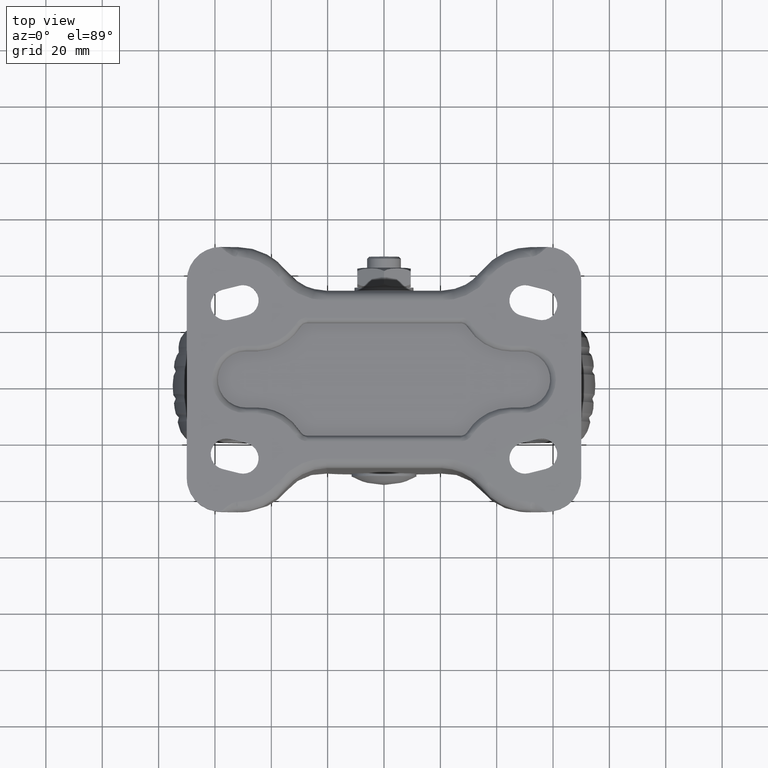
[diagram: clean part render]
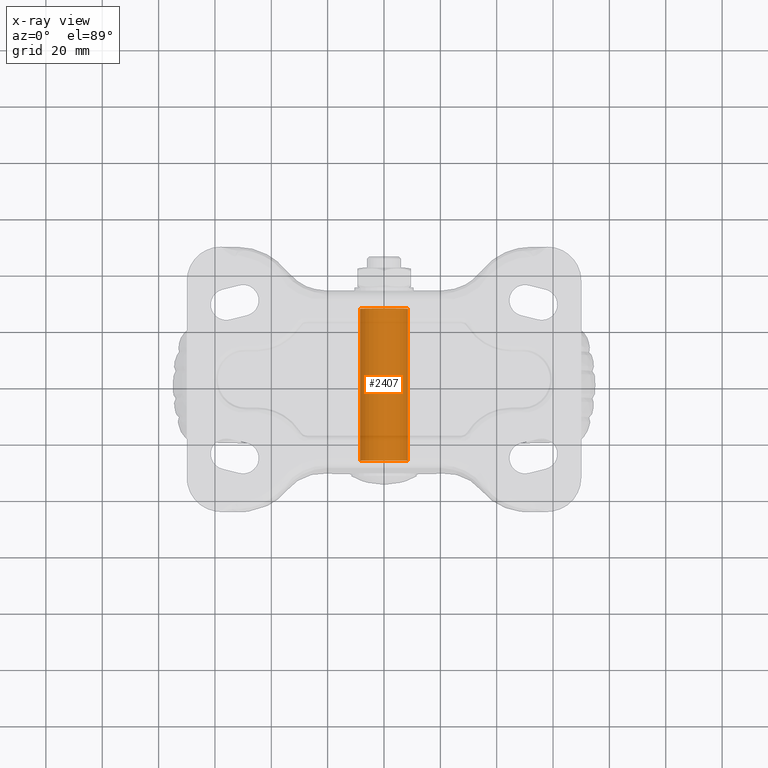
[diagram: x-ray — body ghosted, one internal face saturated and labeled with its STEP entity id]
A machine part, top view, then the same camera in x-ray: the body is ghosted and one INTERNAL B-rep face — a face not visible from any outside direction — is saturated and labeled: STEP entity #2407.
In plain terms, the highlighted face is a freeform B-spline surface patch.
Its self-contained STEP definition (entity closure, byte-faithful):
#2274=CARTESIAN_POINT('',(0.0,-27.0,8.499985000000276));
#2275=VERTEX_POINT('',#2274);
#2276=CARTESIAN_POINT('',(-8.484145786552585,-27.0,0.518897586592595));
#2277=VERTEX_POINT('',#2276);
#2278=CARTESIAN_POINT('',(0.0,-27.0,8.499985000000276));
#2279=CARTESIAN_POINT('',(-7.996001568182833,-27.000000000000004,8.499985000000276));
#2280=CARTESIAN_POINT('',(-8.484145786552588,-27.0,0.518897586592594));
#2288=(BOUNDED_CURVE()B_SPLINE_CURVE(2,(#2278,#2279,#2280),.UNSPECIFIED.,.F.,.U.)B_SPLINE_CURVE_WITH_KNOTS((3,3),(0.500000000000000,0.739332962230861),.UNSPECIFIED.)CURVE()GEOMETRIC_REPRESENTATION_ITEM()RATIONAL_B_SPLINE_CURVE((1.0,0.719603993296179,0.976072041649397))REPRESENTATION_ITEM(''));
#2289=EDGE_CURVE('',#2275,#2277,#2288,.T.);
#2291=CARTESIAN_POINT('',(8.484145786552585,-27.0,-0.518927586592285));
#2292=VERTEX_POINT('',#2291);
#2293=CARTESIAN_POINT('',(8.484145786552585,-27.0,-0.518927586592286));
#2294=CARTESIAN_POINT('',(8.500000000000119,-27.0,-0.259713488311695));
#2295=CARTESIAN_POINT('',(8.500000000000121,-27.0,-0.000014999999845));
#2296=CARTESIAN_POINT('',(8.500000000000121,-27.000000000000011,8.499985000000276));
#2297=CARTESIAN_POINT('',(0.0,-27.0,8.499985000000276));
#2305=(BOUNDED_CURVE()B_SPLINE_CURVE(2,(#2293,#2294,#2295,#2296,#2297),.UNSPECIFIED.,.F.,.U.)B_SPLINE_CURVE_WITH_KNOTS((3,2,3),(0.239332962230861,0.250000000000000,0.500000000000000),.UNSPECIFIED.)CURVE()GEOMETRIC_REPRESENTATION_ITEM()RATIONAL_B_SPLINE_CURVE((0.976072041649397,0.987502787890369,1.0,0.707106781186548,1.0))REPRESENTATION_ITEM(''));
#2306=EDGE_CURVE('',#2292,#2275,#2305,.T.);
#2341=CARTESIAN_POINT('',(8.484145786585987,28.350000000000009,-0.518927586046137));
#2342=CARTESIAN_POINT('',(9.003058372632280,28.350000000000009,7.965218200539851));
#2343=CARTESIAN_POINT('',(0.518912586046292,28.350000000000009,8.484130786586142));
#2344=CARTESIAN_POINT('',(-7.965233200539695,28.350000000000009,9.003043372632433));
#2345=CARTESIAN_POINT('',(-8.484145786585987,28.350000000000009,0.518897586046446));
#2346=CARTESIAN_POINT('',(8.484145786585987,-28.383749999999999,-0.518927586046137));
#2347=CARTESIAN_POINT('',(9.003058372632280,-28.383749999999999,7.965218200539851));
#2348=CARTESIAN_POINT('',(0.518912586046292,-28.383749999999999,8.484130786586142));
#2349=CARTESIAN_POINT('',(-7.965233200539695,-28.383749999999999,9.003043372632433));
#2350=CARTESIAN_POINT('',(-8.484145786585987,-28.383749999999999,0.518897586046446));
#2358=(BOUNDED_SURFACE()B_SPLINE_SURFACE(2,1,((#2341,#2346),(#2342,#2347),(#2343,#2348),(#2344,#2349),(#2345,#2350)),.UNSPECIFIED.,.F.,.F.,.U.)B_SPLINE_SURFACE_WITH_KNOTS((3,2,3),(2,2),(0.0,14.083261120685430,28.166522241370860),(0.0,56.733750000000022),.UNSPECIFIED.)GEOMETRIC_REPRESENTATION_ITEM()RATIONAL_B_SPLINE_SURFACE(((1.0,1.0),(0.707106781186548,0.707106781186548),(1.0,1.0),(0.707106781186548,0.707106781186548),(1.0,1.0)))REPRESENTATION_ITEM('')SURFACE());
#2359=ORIENTED_EDGE('',*,*,#2306,.T.);
#2360=ORIENTED_EDGE('',*,*,#2289,.T.);
#2361=CARTESIAN_POINT('',(-8.484145786552585,27.0,0.518897586592592));
#2362=VERTEX_POINT('',#2361);
#2363=CARTESIAN_POINT('',(-8.484145786552585,27.0,0.518897586592592));
#2364=CARTESIAN_POINT('',(-8.484145786552585,-27.0,0.518897586592595));
#2365=QUASI_UNIFORM_CURVE('',1,(#2363,#2364),.UNSPECIFIED.,.F.,.U.);
#2366=EDGE_CURVE('',#2362,#2277,#2365,.T.);
#2367=ORIENTED_EDGE('',*,*,#2366,.F.);
#2368=CARTESIAN_POINT('',(0.0,27.0,8.499985000000276));
#2369=VERTEX_POINT('',#2368);
#2370=CARTESIAN_POINT('',(0.0,27.0,8.499985000000276));
#2371=CARTESIAN_POINT('',(-7.996001568182833,27.000000000000004,8.499985000000276));
#2372=CARTESIAN_POINT('',(-8.484145786552588,27.0,0.518897586592594));
#2380=(BOUNDED_CURVE()B_SPLINE_CURVE(2,(#2370,#2371,#2372),.UNSPECIFIED.,.F.,.U.)B_SPLINE_CURVE_WITH_KNOTS((3,3),(0.500000000000000,0.739332962230861),.UNSPECIFIED.)CURVE()GEOMETRIC_REPRESENTATION_ITEM()RATIONAL_B_SPLINE_CURVE((1.0,0.719603993296179,0.976072041649397))REPRESENTATION_ITEM(''));
#2381=EDGE_CURVE('',#2369,#2362,#2380,.T.);
#2382=ORIENTED_EDGE('',*,*,#2381,.F.);
#2383=CARTESIAN_POINT('',(8.484145786552585,27.0,-0.518927586592285));
#2384=VERTEX_POINT('',#2383);
#2385=CARTESIAN_POINT('',(8.484145786552585,27.0,-0.518927586592286));
#2386=CARTESIAN_POINT('',(8.500000000000119,27.0,-0.259713488311695));
#2387=CARTESIAN_POINT('',(8.500000000000121,27.0,-0.000014999999845));
#2388=CARTESIAN_POINT('',(8.500000000000121,27.000000000000011,8.499985000000276));
#2389=CARTESIAN_POINT('',(0.0,27.0,8.499985000000276));
#2397=(BOUNDED_CURVE()B_SPLINE_CURVE(2,(#2385,#2386,#2387,#2388,#2389),.UNSPECIFIED.,.F.,.U.)B_SPLINE_CURVE_WITH_KNOTS((3,2,3),(0.239332962230861,0.250000000000000,0.500000000000000),.UNSPECIFIED.)CURVE()GEOMETRIC_REPRESENTATION_ITEM()RATIONAL_B_SPLINE_CURVE((0.976072041649397,0.987502787890369,1.0,0.707106781186548,1.0))REPRESENTATION_ITEM(''));
#2398=EDGE_CURVE('',#2384,#2369,#2397,.T.);
#2399=ORIENTED_EDGE('',*,*,#2398,.F.);
#2400=CARTESIAN_POINT('',(8.484145786552585,27.0,-0.518927586592285));
#2401=CARTESIAN_POINT('',(8.484145786552585,-27.0,-0.518927586592285));
#2402=QUASI_UNIFORM_CURVE('',1,(#2400,#2401),.UNSPECIFIED.,.F.,.U.);
#2403=EDGE_CURVE('',#2384,#2292,#2402,.T.);
#2404=ORIENTED_EDGE('',*,*,#2403,.T.);
#2405=EDGE_LOOP('',(#2359,#2360,#2367,#2382,#2399,#2404));
#2406=FACE_OUTER_BOUND('',#2405,.T.);
#2407=ADVANCED_FACE('',(#2406),#2358,.F.);